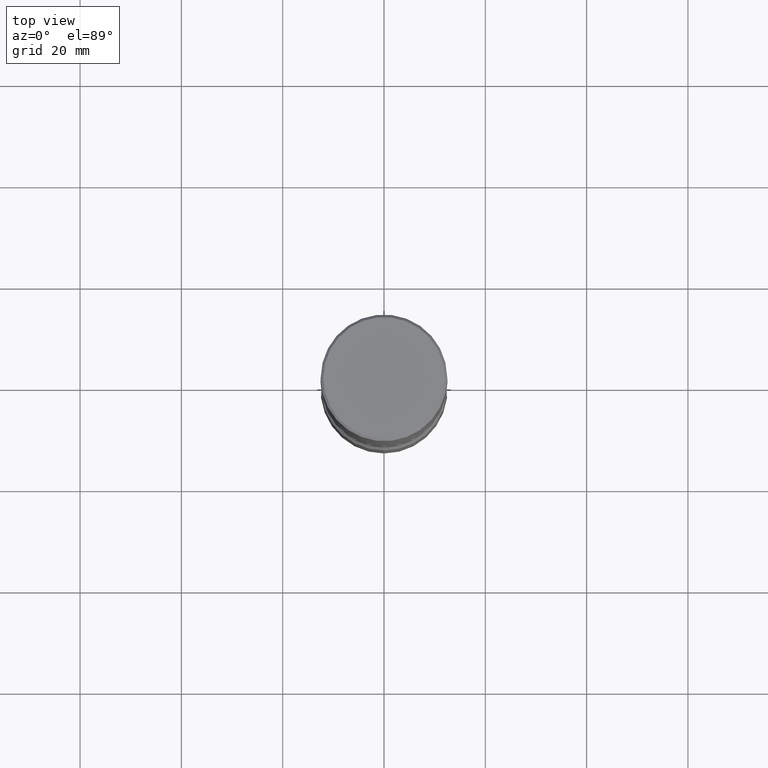
[diagram: clean part render]
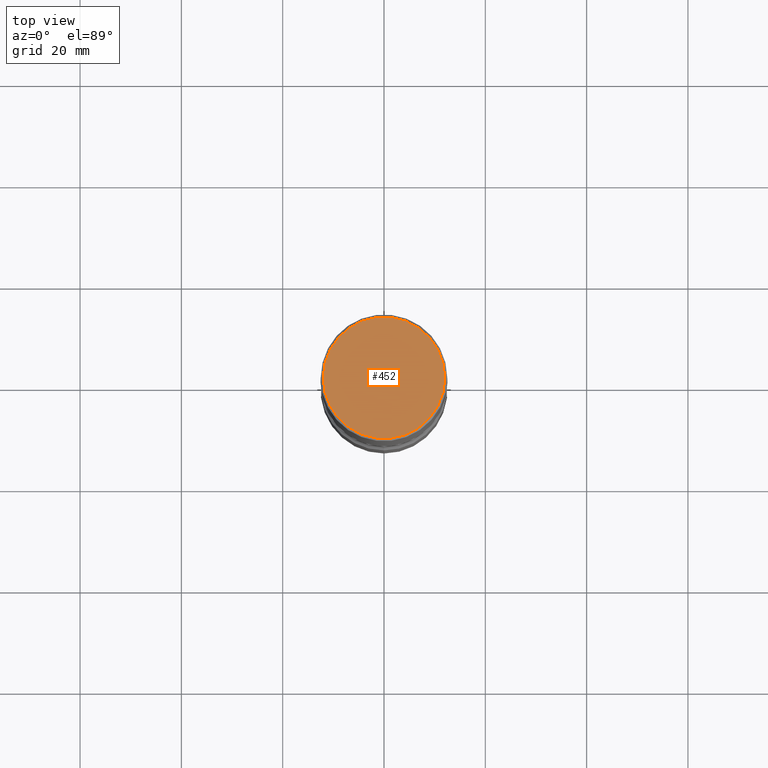
[diagram: same view with one face highlighted and labeled with its STEP entity id]
A machine part, top view. The second image highlights one B-rep face of the part: STEP entity #452.
In plain terms, the highlighted planar face has unit normal (0, -0, -1).
Its self-contained STEP definition (entity closure, byte-faithful):
#9 = EDGE_LOOP ( 'NONE', ( #130, #55 ) ) ;
#41 = AXIS2_PLACEMENT_3D ( 'NONE', #390, #274, #48 ) ;
#48 = DIRECTION ( 'NONE',  ( 1.000000000000000000, -6.982962677686265922E-15, 4.876006802227162976E-29 ) ) ;
#51 = CARTESIAN_POINT ( 'NONE',  ( -3.131554243005659264E-46, 4.471029511141341874E-32, 1.280553747030123384E-17 ) ) ;
#55 = ORIENTED_EDGE ( 'NONE', *, *, #315, .T. ) ;
#59 = DIRECTION ( 'NONE',  ( 2.438088387897960049E-29, -3.491481338843145188E-15, -1.000000000000000000 ) ) ;
#102 = CIRCLE ( 'NONE', #41, 0.4721499999999996255 ) ;
#130 = ORIENTED_EDGE ( 'NONE', *, *, #231, .T. ) ;
#135 = VERTEX_POINT ( 'NONE', #458 ) ;
#173 = DIRECTION ( 'NONE',  ( -1.000000000000000000, 6.982962677686265922E-15, -4.876176775795935793E-29 ) ) ;
#221 = AXIS2_PLACEMENT_3D ( 'NONE', #51, #471, #480 ) ;
#231 = EDGE_CURVE ( 'NONE', #445, #135, #102, .T. ) ;
#256 = CARTESIAN_POINT ( 'NONE',  ( 3.297005828269567997E-15, 0.4721499999999996255, -1.642100145399639275E-15 ) ) ;
#274 = DIRECTION ( 'NONE',  ( -2.445468806185136597E-29, 3.491481338843145583E-15, 1.000000000000000000 ) ) ;
#309 = CIRCLE ( 'NONE', #221, 0.4721499999999996255 ) ;
#315 = EDGE_CURVE ( 'NONE', #135, #445, #309, .T. ) ;
#326 = AXIS2_PLACEMENT_3D ( 'NONE', #256, #59, #173 ) ;
#332 = CARTESIAN_POINT ( 'NONE',  ( -0.4721499999999996255, 3.331920641657999252E-15, 1.280553747027805488E-17 ) ) ;
#373 = FACE_OUTER_BOUND ( 'NONE', #9, .T. ) ;
#390 = CARTESIAN_POINT ( 'NONE',  ( -3.131554243005659264E-46, 4.471029511141341874E-32, 1.280553747030123384E-17 ) ) ;
#445 = VERTEX_POINT ( 'NONE', #332 ) ;
#452 = ADVANCED_FACE ( 'NONE', ( #373 ), #490, .F. ) ;
#458 = CARTESIAN_POINT ( 'NONE',  ( 0.4721499999999996255, -3.342703923013973396E-15, 1.280553747032445131E-17 ) ) ;
#471 = DIRECTION ( 'NONE',  ( -2.445468806185136597E-29, 3.491481338843145583E-15, 1.000000000000000000 ) ) ;
#480 = DIRECTION ( 'NONE',  ( 1.000000000000000000, -6.982962677686265922E-15, 4.876006802227162976E-29 ) ) ;
#490 = PLANE ( 'NONE',  #326 ) ;